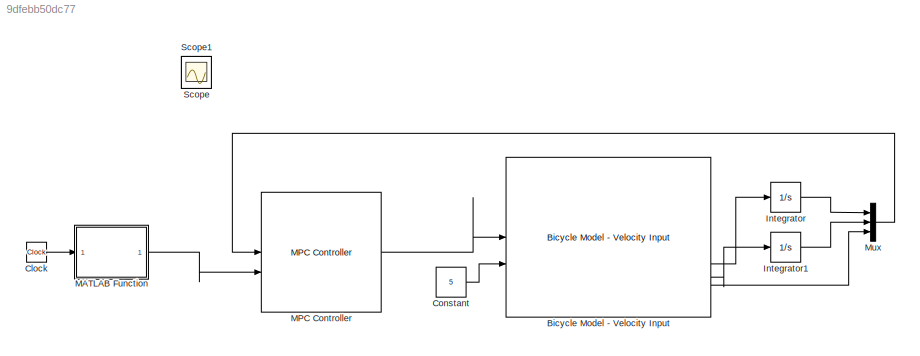
MODEL slx_9dfebb50dc77
KIND model
CONFIG AbsTol = auto
CONFIG EnableMultiTasking = off
CONFIG FixedStep = auto
CONFIG MaxStep = auto
CONFIG MinStep = auto
CONFIG RelTol = 1e-3
CONFIG SampleTimeConstraint = Unconstrained
CONFIG SolverName = VariableStepAuto
CONFIG StartTime = 0.0
CONFIG StopTime = 10.0
BLOCK [Reference] Bicycle Model - Velocity Input  REF=autolibshared/Bicycle Model - Velocity Input
  SourceBlock = autolibshared/Bicycle Model - Velocity Input
  SourceType = Vehicle Body 3DOF Lateral
BLOCK [Clock] Clock
BLOCK [Constant] Constant
  Value = 5
BLOCK [Integrator] Integrator
BLOCK [Integrator] Integrator1
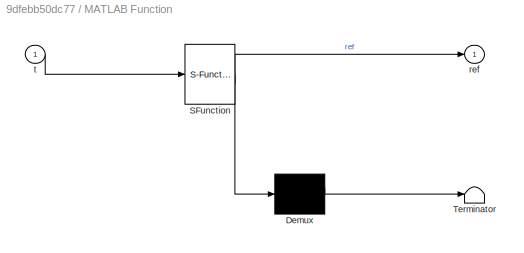
BLOCK [SubSystem] MATLAB Function
  ErrorFcn = Stateflow.Translate.translate
  PermitHierarchicalResolution = ExplicitOnly
  SFBlockType = MATLAB Function
  TreatAsAtomicUnit = on
BLOCK [Demux] MATLAB Function/ Demux 
  Outputs = 1
BLOCK [S-Function] MATLAB Function/ SFunction 
  EnableBusSupport = off
  FunctionName = sf_sfun
  PortCounts = [1 2]
  SFcnIsStateOwnerBlock = off
  SFunctionDeploymentMode = off
  Tag = Stateflow S-Function 2
BLOCK [Terminator] MATLAB Function/ Terminator 
BLOCK [Outport] MATLAB Function/ref
BLOCK [Inport] MATLAB Function/t
BLOCK [Reference] MPC Controller  REF=mpclib/MPC Controller  (lib defined in mdl_ae329e0e0455)
  SCDEnableBlockLinearizationSpecification = on
  SourceBlock = mpclib/MPC Controller
  SourceType = MPC
BLOCK [Mux] Mux
  DisplayOption = bar
  Inputs = 3
BLOCK [Scope] Scope
  Floating = off
  IOType = viewer
  NumInputPorts = 1
  ScopeSpecificationString = Simulink.scopes.TimeScopeBlockCfg('CurrentConfiguration', extmgr.ConfigurationSet(extmgr.Configuration('Core','General UI',true),extmgr.Configuration('Core','Source UI',true),extmgr.Configuration('Sources','WiredSimulink',true,'DataLoggingVariableName','ScopeData1'),extmgr.Configuration('Visuals','Time Domain',true,'SerializedDisplays',{struct('MinYLimReal','-10','MaxYLimReal','10','YLabelReal',''...<+879ch>
BLOCK [Scope] Scope1
  Floating = off
  IOType = viewer
  NumInputPorts = 1
  ScopeSpecificationString = Simulink.scopes.TimeScopeBlockCfg('CurrentConfiguration', extmgr.ConfigurationSet(extmgr.Configuration('Core','General UI',true),extmgr.Configuration('Core','Source UI',true),extmgr.Configuration('Sources','WiredSimulink',true,'DataLoggingVariableName','ScopeData1'),extmgr.Configuration('Visuals','Time Domain',true,'SerializedDisplays',{struct('MinYLimReal','-10','MaxYLimReal','10','YLabelReal',''...<+879ch>
LINE Bicycle Model - Velocity Input:2 -> Integrator:1
LINE Bicycle Model - Velocity Input:3 -> Integrator1:1
LINE Bicycle Model - Velocity Input:4 -> Mux:3
LINE Clock:1 -> MATLAB Function:1
LINE Constant:1 -> Bicycle Model - Velocity Input:2
LINE Integrator1:1 -> Mux:2
LINE Integrator:1 -> Mux:1
LINE MATLAB Function:1 -> MPC Controller:2
LINE MPC Controller:1 -> Bicycle Model - Velocity Input:1
LINE Mux:1 -> MPC Controller:1
CHART MATLAB Function states=1 transitions=1
  STATE_LABEL 'eML_blk_kernel()'
  STATE_LABEL 'SCRIPT:\nfunction ref  = trajectory_generator(t)\n    % Coefficients for x (e.g., 2nd-degree polynomial for x-position)\n    a_x = 1; \n    b_x = 0.5; \n    c_x = 0; \n    \n    % Coefficients for y (e.g., 2nd-degree polynomial for y-position)\n    a_y = 1; \n    b_y = -0.3; \n    c_y = 0.2; \n\n    % Position equations: Polynomial trajectories\n    x_pos = a_x*t^2 + b_x*t + c_x;  % x-position\n    y_pos = a_y*...<+230ch>'
CHART  states=0 transitions=0
